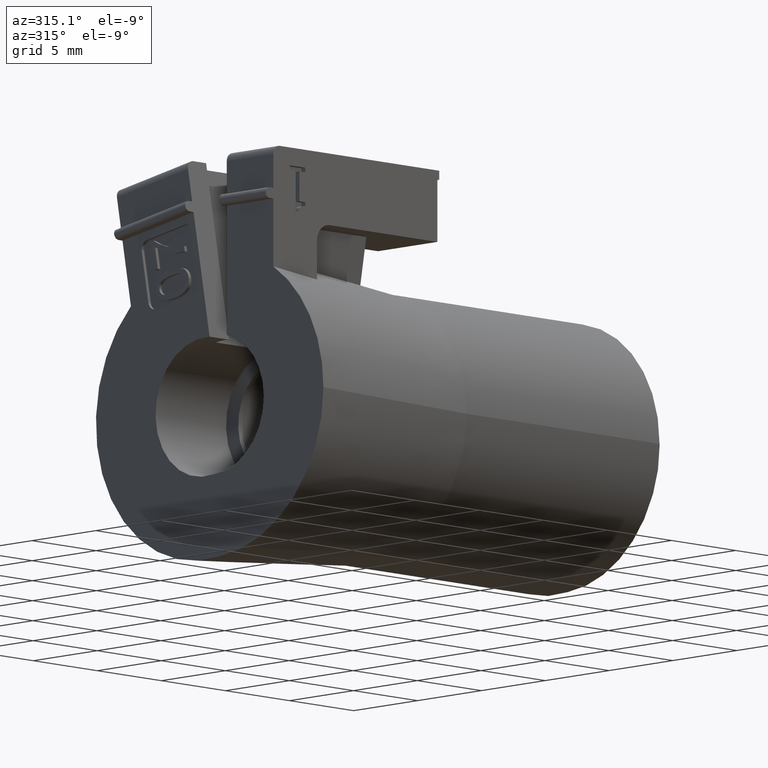
[diagram: clean part render]
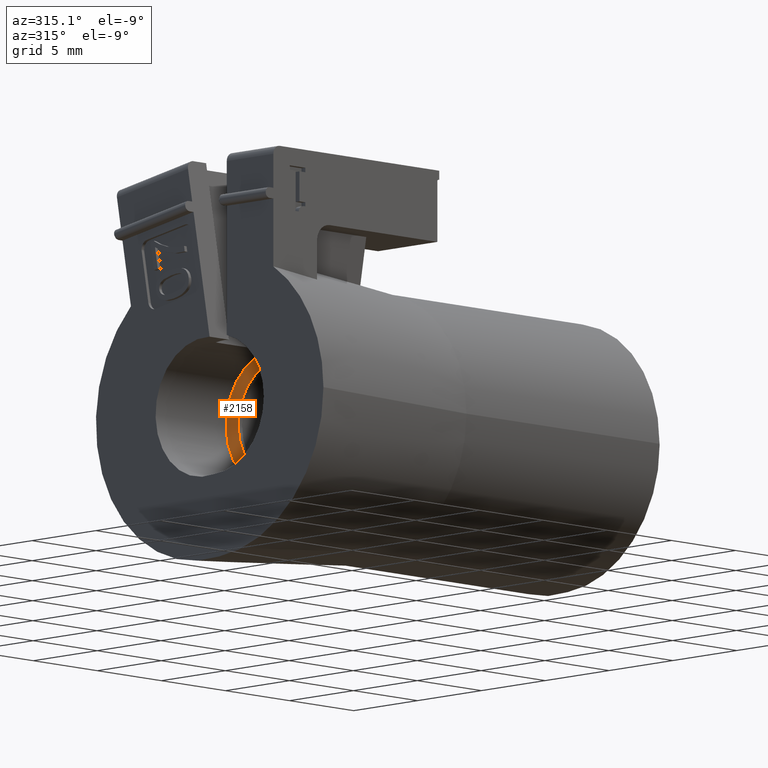
[diagram: same view with one face highlighted and labeled with its STEP entity id]
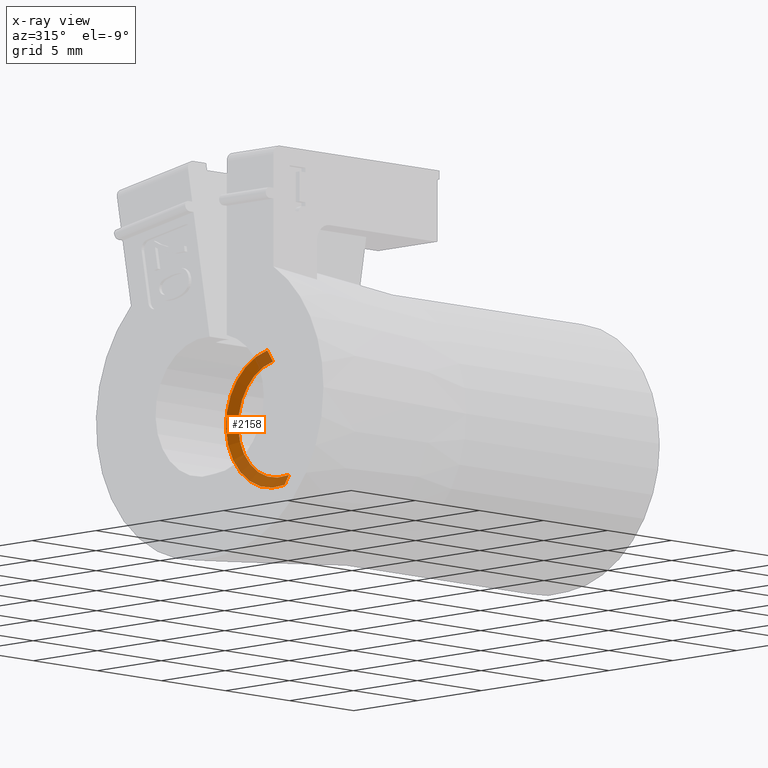
[diagram: x-ray of the same camera — body ghosted, the highlighted face saturated]
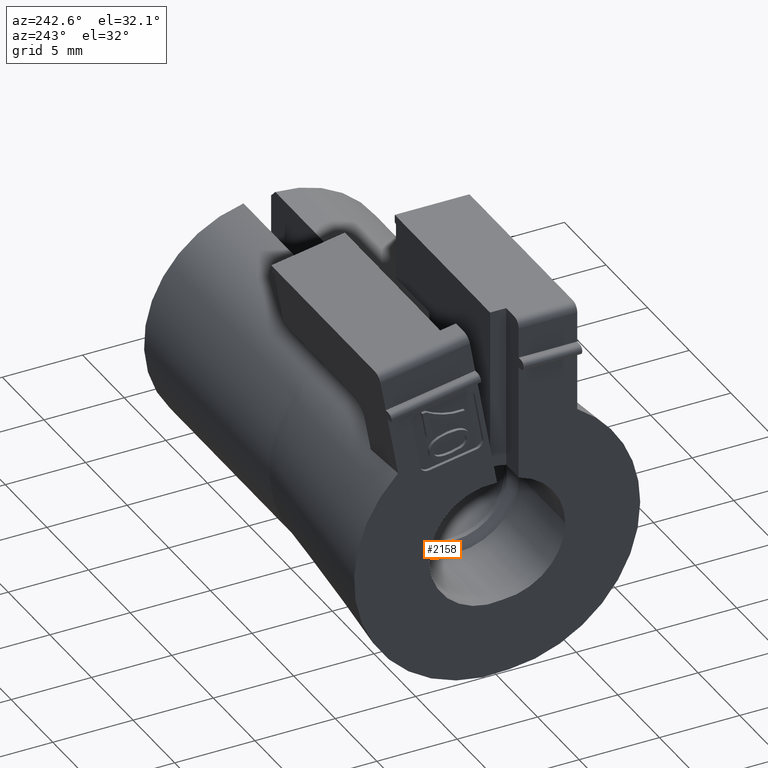
[diagram: same view with one face highlighted and labeled with its STEP entity id]
A machine part, auxiliary view. The second image highlights one B-rep face of the part: STEP entity #2158.
The next image is the same camera in x-ray: the body ghosted, the highlighted face saturated — about 40% of this face is hidden behind the body in this view.
A second angle (auxiliary view) of the same face is appended — the face is thin or edge-on in the first view.
In plain terms, the highlighted conical surface has half-angle 60 deg.
Its self-contained STEP definition (entity closure, byte-faithful):
#53 = B_SPLINE_CURVE_WITH_KNOTS ( 'NONE', 3,
 ( #2641, #175, #1268, #2379 ),
 .UNSPECIFIED., .F., .F.,
 ( 4, 4 ),
 ( 0.0000000000000000000, 1.000000000000000000 ),
 .UNSPECIFIED. ) ;
#83 = CONICAL_SURFACE ( 'NONE', #2093, 0.1535433070734917027, 1.047197549979607345 ) ;
#158 = FACE_OUTER_BOUND ( 'NONE', #2215, .T. ) ;
#175 = CARTESIAN_POINT ( 'NONE',  ( 0.1896656503504342284, -0.0002375265756937191522, -0.1456134304897409859 ) ) ;
#239 = DIRECTION ( 'NONE',  ( 0.0000000000000000000, 0.1736481776685393497, 0.9848077530119243583 ) ) ;
#270 = ORIENTED_EDGE ( 'NONE', *, *, #1415, .F. ) ;
#315 = CIRCLE ( 'NONE', #1875, 0.1299212598530315455 ) ;
#352 = B_SPLINE_CURVE_WITH_KNOTS ( 'NONE', 3,
 ( #3200, #3435, #1810, #1271 ),
 .UNSPECIFIED., .F., .F.,
 ( 4, 4 ),
 ( 0.0000000000000000000, 1.000000000000000000 ),
 .UNSPECIFIED. ) ;
#443 = EDGE_CURVE ( 'NONE', #3046, #2672, #352, .T. ) ;
#453 = CARTESIAN_POINT ( 'NONE',  ( 0.1851807023026047216, 0.02666251546854397220, -0.002332667844582339469 ) ) ;
#537 = AXIS2_PLACEMENT_3D ( 'NONE', #453, #1793, #2881 ) ;
#564 = VERTEX_POINT ( 'NONE', #1362 ) ;
#650 = VECTOR ( 'NONE', #900, 39.37007874015748143 ) ;
#668 = ORIENTED_EDGE ( 'NONE', *, *, #1228, .T. ) ;
#759 = VERTEX_POINT ( 'NONE', #1538 ) ;
#900 = DIRECTION ( 'NONE',  ( 0.5000000010362833924, -0.1503837330765436520, -0.8528685313632339282 ) ) ;
#1227 = CARTESIAN_POINT ( 'NONE',  ( 0.1986994426419295690, 3.407069174420528296E-06, -0.1299049559385586639 ) ) ;
#1228 = EDGE_CURVE ( 'NONE', #564, #759, #2551, .T. ) ;
#1268 = CARTESIAN_POINT ( 'NONE',  ( 0.1941505984115526329, -0.0002298223580304835389, -0.1377010501494262962 ) ) ;
#1271 = CARTESIAN_POINT ( 'NONE',  ( 0.1986994426419295690, 3.407069174420528296E-06, -0.1299049559385586639 ) ) ;
#1317 = CARTESIAN_POINT ( 'NONE',  ( 0.1988188976527876239, 0.02666251546854388199, -0.002332667844582320821 ) ) ;
#1362 = CARTESIAN_POINT ( 'NONE',  ( 0.1851807023001631192, 0.05332503093614456707, 0.1488779713916495995 ) ) ;
#1415 = EDGE_CURVE ( 'NONE', #564, #2094, #3364, .T. ) ;
#1488 = DIRECTION ( 'NONE',  ( -2.446404902227654429E-15, -1.000000000000000000, 0.0000000000000000000 ) ) ;
#1538 = CARTESIAN_POINT ( 'NONE',  ( 0.1851807022971392047, -1.550960843752467072E-14, -0.1535433070838148895 ) ) ;
#1685 = CARTESIAN_POINT ( 'NONE',  ( 0.1988188976499999094, 0.004101925455555400016, -0.1302801318237790940 ) ) ;
#1717 = CARTESIAN_POINT ( 'NONE',  ( -11517.13532746691453, 3464.088623966530577, 19645.66929133858503 ) ) ;
#1726 = ORIENTED_EDGE ( 'NONE', *, *, #3207, .T. ) ;
#1793 = DIRECTION ( 'NONE',  ( -1.000000000000000000, 2.511181000000000129E-15, -3.330658000000000231E-16 ) ) ;
#1810 = CARTESIAN_POINT ( 'NONE',  ( 0.1986559188250836827, 0.001367308484453269189, -0.1300408838344523088 ) ) ;
#1875 = AXIS2_PLACEMENT_3D ( 'NONE', #1317, #3498, #239 ) ;
#2064 = CARTESIAN_POINT ( 'NONE',  ( 0.1988188976572634881, 0.04922310548091386045, 0.1256147961326068152 ) ) ;
#2093 = AXIS2_PLACEMENT_3D ( 'NONE', #2843, #3362, #1488 ) ;
#2094 = VERTEX_POINT ( 'NONE', #2064 ) ;
#2158 = ADVANCED_FACE ( 'NONE', ( #158 ), #83, .F. ) ;
#2215 = EDGE_LOOP ( 'NONE', ( #270, #668, #1726, #2578, #3212 ) ) ;
#2379 = CARTESIAN_POINT ( 'NONE',  ( 0.1986994426419295690, 3.407069174420528296E-06, -0.1299049559385586639 ) ) ;
#2551 = CIRCLE ( 'NONE', #537, 0.1535433070866142058 ) ;
#2578 = ORIENTED_EDGE ( 'NONE', *, *, #443, .F. ) ;
#2641 = CARTESIAN_POINT ( 'NONE',  ( 0.1851807022971392047, -1.550960843752467072E-14, -0.1535433070838148895 ) ) ;
#2672 = VERTEX_POINT ( 'NONE', #1227 ) ;
#2843 = CARTESIAN_POINT ( 'NONE',  ( 0.1851807022930417324, 0.02666251546854391669, -0.002332667844582327760 ) ) ;
#2881 = DIRECTION ( 'NONE',  ( -2.446404902018573551E-15, -1.000000000000000000, 0.0000000000000000000 ) ) ;
#2894 = EDGE_CURVE ( 'NONE', #2094, #3046, #315, .T. ) ;
#3046 = VERTEX_POINT ( 'NONE', #1685 ) ;
#3200 = CARTESIAN_POINT ( 'NONE',  ( 0.1988188976499999094, 0.004101925455555400016, -0.1302801318237790940 ) ) ;
#3207 = EDGE_CURVE ( 'NONE', #759, #2672, #53, .T. ) ;
#3212 = ORIENTED_EDGE ( 'NONE', *, *, #2894, .F. ) ;
#3362 = DIRECTION ( 'NONE',  ( -1.000000000000000000, 2.538059072349404321E-15, -3.346126275794986886E-16 ) ) ;
#3364 = LINE ( 'NONE', #1717, #650 ) ;
#3435 = CARTESIAN_POINT ( 'NONE',  ( 0.1987374082389356533, 0.002734616970119597545, -0.1301605078264909399 ) ) ;
#3498 = DIRECTION ( 'NONE',  ( -1.000000000000000000, 2.511181000000000129E-15, -3.330658000000000231E-16 ) ) ;